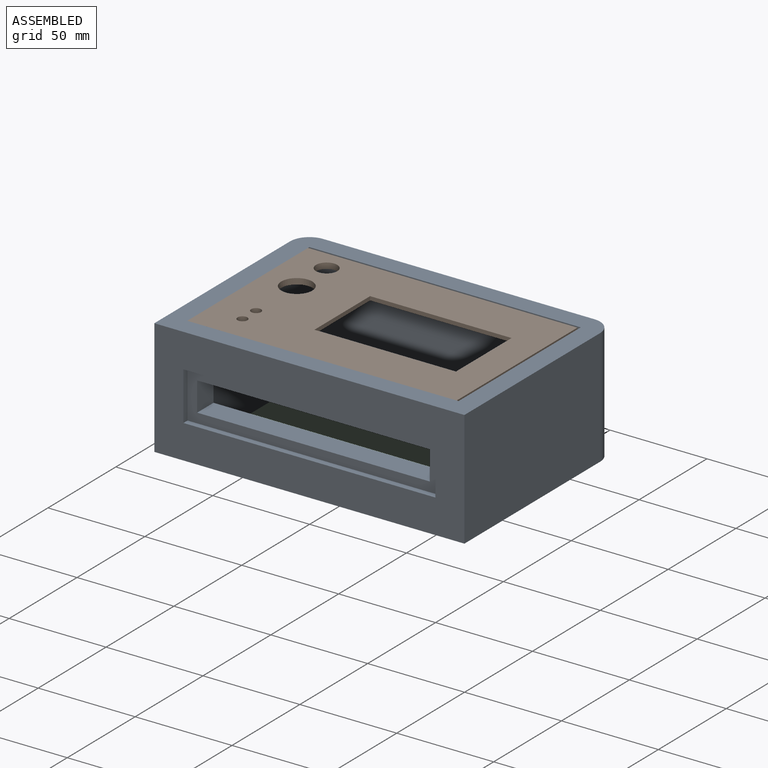
[diagram: assembled view]
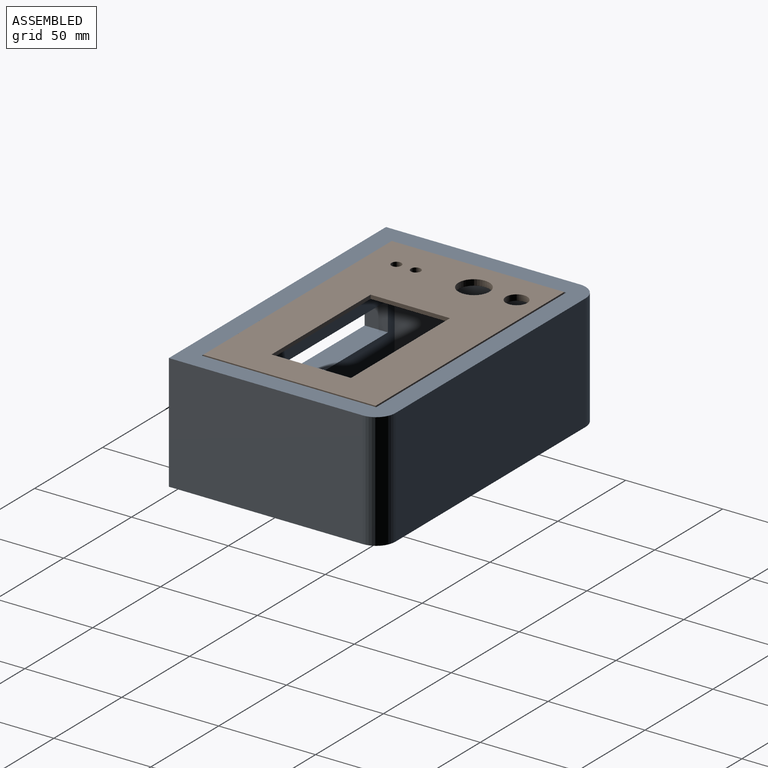
[diagram: assembled view, second angle]
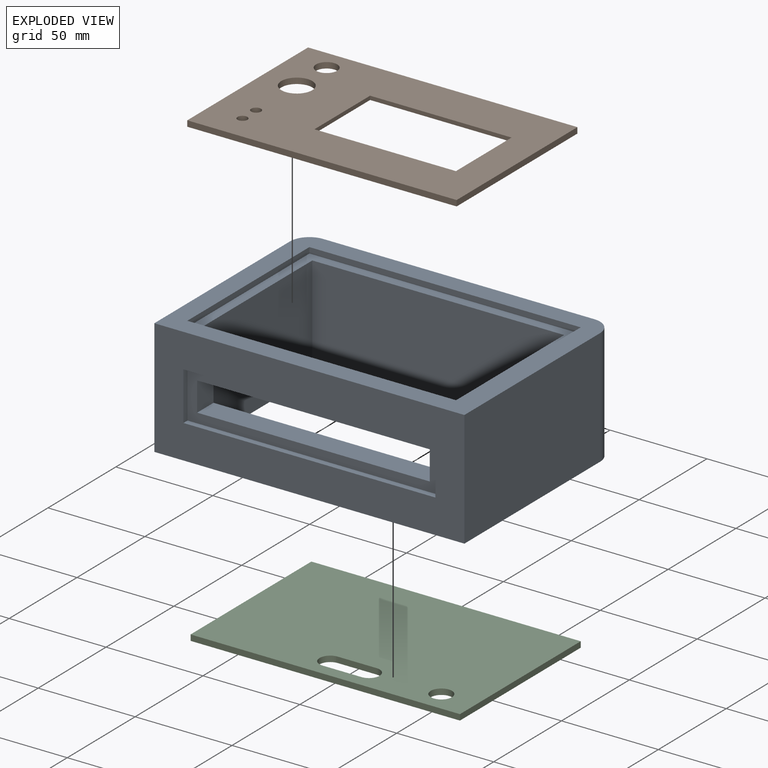
[diagram: exploded view]
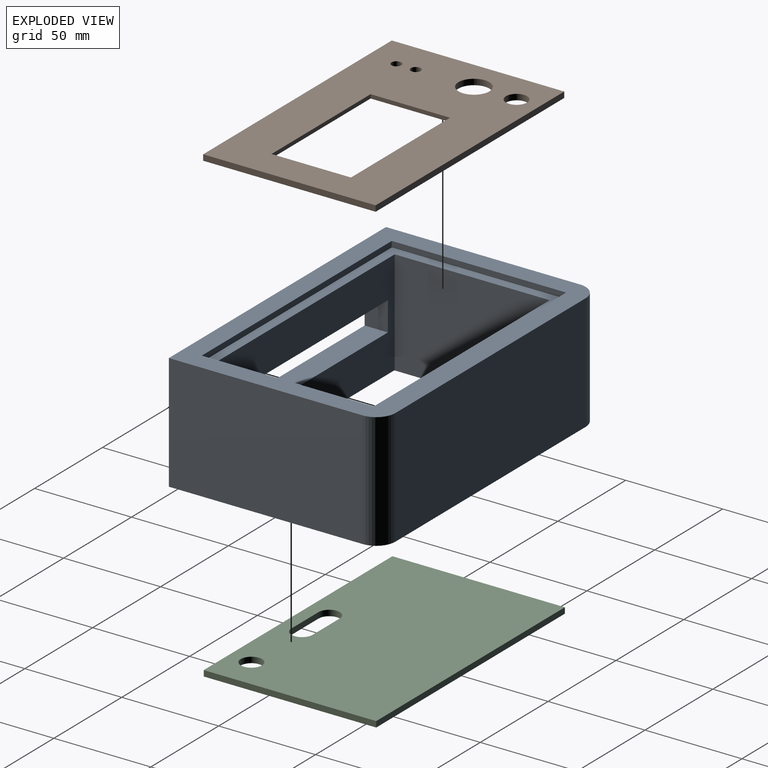
[diagram: exploded view, second angle]
ASSEMBLY  parts=3 mates=2
PART A: 31 faces, bbox 160x110x60 mm
  f0: plane 160x60mm, normal (0,-1,0), area 6350mm2, adj f4,f6,f8,f9,f26,f27,f28,f29
  f1: plane 140x3mm, normal (0,-1,0), area 420mm2, adj f2,f7,f8,f16
  f2: plane 90x3mm, normal (-1,0,0), area 270mm2, adj f1,f3,f8,f16
  f3: plane 140x3mm, normal (0,1,0), area 420mm2, adj f2,f7,f8,f16
  f4: plane 100x60mm, normal (1,0,0), area 6000mm2, adj f0,f8,f9,f10
  f5: plane 140x60mm, normal (0,1,0), area 8400mm2, adj f8,f9,f10,f11
  f6: plane 100x60mm, normal (-1,0,0), area 6000mm2, adj f0,f8,f9,f11
  f7: plane 90x3mm, normal (1,0,0), area 270mm2, adj f1,f3,f8,f16
  f8: plane 160x110mm, normal (0,0,1), area 4957.1mm2, adj f0,f1,f2,f3,f4,f5,f6,f7
  f9: plane 160x110mm, normal (0,0,-1), area 4957.1mm2, adj f0,f4,f5,f6,f10,f11,f21,f22
  f10: cylinder r=10mm len=60mm, axis (0,0,1), area 942.5mm2, adj f4,f5,f8,f9
  f11: cylinder r=10mm len=60mm, axis (0,0,-1), area 942.5mm2, adj f5,f6,f8,f9
  f12: plane 80x54mm, normal (1,0,0), area 4320mm2, adj f13,f15,f16,f25
  f13: plane 130x54mm, normal (0,-1,0), area 7020mm2, adj f12,f14,f16,f25
  f14: plane 80x54mm, normal (-1,0,0), area 4320mm2, adj f13,f15,f16,f25
  f15: plane 130x54mm, normal (0,1,0), area 5220mm2, adj f12,f14,f16,f17,f18,f19,f20,f25
  f16: plane 140x90mm, normal (0,0,1), area 2200mm2, adj f1,f2,f3,f7,f12,f13,f14,f15
  f17: plane 15x12mm, normal (-1,0,0), area 180mm2, adj f15,f18,f20,f30
  f18: plane 120x12mm, normal (0,0,-1), area 1440mm2, adj f15,f17,f19,f30
  f19: plane 15x12mm, normal (1,0,0), area 180mm2, adj f15,f18,f20,f30
  f20: plane 120x12mm, normal (0,0,1), area 1440mm2, adj f15,f17,f19,f30
  f21: plane 90x3mm, normal (-1,0,0), area 270mm2, adj f9,f22,f24,f25
  f22: plane 140x3mm, normal (0,-1,0), area 420mm2, adj f9,f21,f23,f25
  f23: plane 90x3mm, normal (1,0,0), area 270mm2, adj f9,f22,f24,f25
  f24: plane 140x3mm, normal (0,1,0), area 420mm2, adj f9,f21,f23,f25
  f25: plane 140x90mm, normal (0,0,-1), area 2200mm2, adj f12,f13,f14,f15,f21,f22,f23,f24
  f26: plane 130x3mm, normal (0,0,-1), area 390mm2, adj f0,f27,f29,f30
  f27: plane 25x3mm, normal (1,0,0), area 75mm2, adj f0,f26,f28,f30
  f28: plane 130x3mm, normal (0,0,1), area 390mm2, adj f0,f27,f29,f30
  f29: plane 25x3mm, normal (-1,0,0), area 75mm2, adj f0,f26,f28,f30
  f30: plane 130x25mm, normal (0,-1,0), area 1450mm2, adj f17,f18,f19,f20,f26,f27,f28,f29
PART B: 19 faces, bbox 139x89x3 mm
  f0: plane 73x2mm, normal (0,1,0), area 146mm2, adj f1,f11,f12,f18
  f1: plane 41x2mm, normal (1,0,0), area 82mm2, adj f0,f2,f12,f18
  f2: plane 73x2mm, normal (0,-1,0), area 146mm2, adj f1,f11,f12,f18
  f3: plane 89x3mm, normal (1,0,0), area 267mm2, adj f4,f10,f12,f13
  f4: plane 139x3mm, normal (0,1,0), area 417mm2, adj f3,f5,f12,f13
  f5: plane 89x3mm, normal (-1,0,0), area 267mm2, adj f4,f10,f12,f13
  f6: cylinder r=2.55mm len=5.1mm, axis (0,0,-1), area 48.1mm2, adj f12,f13
  f7: cylinder r=8mm len=16mm, axis (0,0,-1), area 150.8mm2, adj f12,f13
  f8: cylinder r=2.55mm len=5.1mm, axis (0,0,-1), area 48.1mm2, adj f12,f13
  f9: cylinder r=5.5mm len=11mm, axis (0,0,-1), area 103.7mm2, adj f12,f13
  f10: plane 139x3mm, normal (0,-1,0), area 417mm2, adj f3,f5,f12,f13
  f11: plane 41x2mm, normal (-1,0,0), area 82mm2, adj f0,f2,f12,f18
  f12: plane 139x89mm, normal (0,0,1), area 9041mm2, adj f0,f1,f2,f3,f4,f5,f6,f7
  f13: plane 139x89mm, normal (0,0,-1), area 4034mm2, adj f3,f4,f5,f6,f7,f8,f9,f10
  f14: plane 80x1mm, normal (1,0,0), area 80mm2, adj f13,f15,f17,f18
  f15: plane 100x1mm, normal (0,1,0), area 100mm2, adj f13,f14,f16,f18
  f16: plane 80x1mm, normal (-1,0,0), area 80mm2, adj f13,f15,f17,f18
  f17: plane 100x1mm, normal (0,-1,0), area 100mm2, adj f13,f14,f16,f18
  f18: plane 100x80mm, normal (0,0,-1), area 5007mm2, adj f0,f1,f2,f11,f14,f15,f16,f17
PART C: 11 faces, bbox 139x89x3 mm
  f0: plane 139x3mm, normal (0,-1,0), area 417mm2, adj f1,f8,f9,f10
  f1: plane 89x3mm, normal (1,0,0), area 267mm2, adj f0,f2,f9,f10
  f2: plane 139x3mm, normal (0,1,0), area 417mm2, adj f1,f8,f9,f10
  f3: plane 20.01x3mm, normal (0,-1,0), area 60mm2, adj f4,f6,f9,f10
  f4: cylinder r=5.5mm len=11mm, axis (0,0,-1), area 51.8mm2, adj f3,f5,f9,f10
  f5: plane 20.01x3mm, normal (0,1,0), area 60mm2, adj f4,f6,f9,f10
  f6: cylinder r=5.5mm len=11mm, axis (0,0,-1), area 51.8mm2, adj f3,f5,f9,f10
  f7: cylinder r=5.5mm len=11mm, axis (0,0,-1), area 103.7mm2, adj f9,f10
  f8: plane 89x3mm, normal (-1,0,0), area 267mm2, adj f0,f2,f9,f10
  f9: plane 139x89mm, normal (0,0,1), area 11960.8mm2, adj f0,f1,f2,f3,f4,f5,f6,f7
  f10: plane 139x89mm, normal (0,0,-1), area 11960.8mm2, adj f0,f1,f2,f3,f4,f5,f6,f7
PLACE A t=(35.68,-30.76,15.91)mm
PLACE B t=(326.95,-41.76,72.91)mm
PLACE C rot(axis=(0,0,1),180deg) t=(-987.29,-118.43,15.91)mm
MATE parallel C.f9 <-> A.f11  axis (0,0,1) through (-270.55,-40.76,18.91)mm
MATE fastened B.f13 <-> A.f16  axis (0,0,-1) through (-271.55,-130.76,72.91)mm
